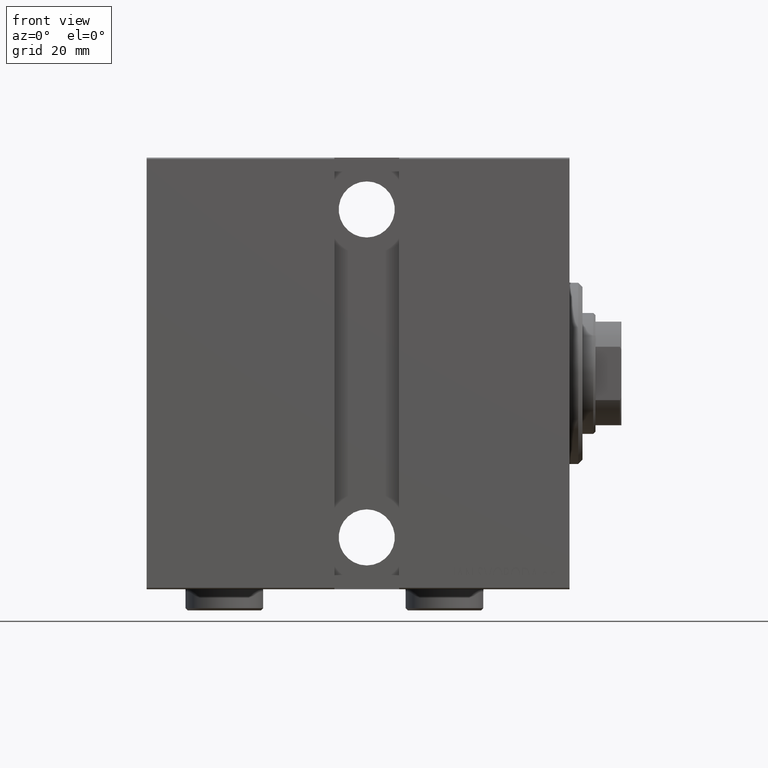
[diagram: clean part render]
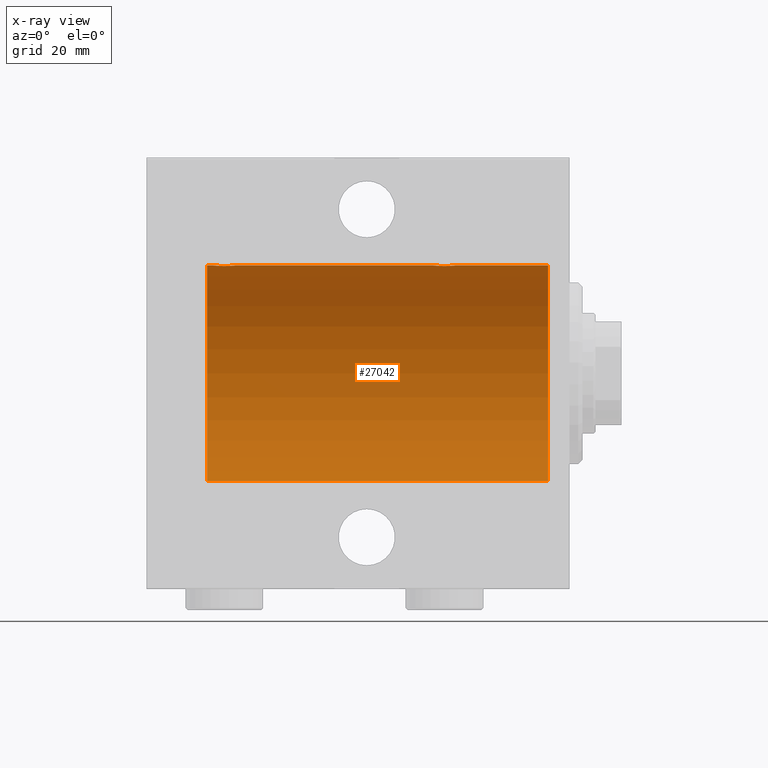
[diagram: x-ray — body ghosted, one internal face saturated and labeled with its STEP entity id]
A machine part, front view, then the same camera in x-ray: the body is ghosted and one INTERNAL B-rep face — a face not visible from any outside direction — is saturated and labeled: STEP entity #27042.
In plain terms, the highlighted cylindrical surface (partial cylindrical patch) has radius 25 mm, axis along (1, 0, -0).
Its self-contained STEP definition (entity closure, byte-faithful):
#28 = CARTESIAN_POINT ( 'NONE',  ( 78.88963203491135801, -2.245863995402899160, 24.89899750494197050 ) ) ;
#242 = VECTOR ( 'NONE', #32376, 1000.000000000000000 ) ;
#333 = CARTESIAN_POINT ( 'NONE',  ( 26.50000000000001066, -0.1631750940176202591, 25.00000000000001066 ) ) ;
#457 = CARTESIAN_POINT ( 'NONE',  ( 81.10723845838413126, -2.247417070759893942, 24.89885693081947338 ) ) ;
#550 = CARTESIAN_POINT ( 'NONE',  ( 26.57985090779071413, -0.6480119923854232855, 24.99212088949390775 ) ) ;
#634 = EDGE_LOOP ( 'NONE', ( #12469, #4731, #27933, #39482, #34597, #15109, #32681, #2078 ) ) ;
#767 = CARTESIAN_POINT ( 'NONE',  ( 28.67052319885731393, -2.483544361357271413, 24.87635491893501438 ) ) ;
#982 = CARTESIAN_POINT ( 'NONE',  ( 28.83293504821939734, -2.499872792855082793, 24.87469871246082675 ) ) ;
#1212 = DIRECTION ( 'NONE',  ( -1.000000000000000000, -0.000000000000000000, -0.000000000000000000 ) ) ;
#1458 = EDGE_CURVE ( 'NONE', #5057, #15138, #39580, .T. ) ;
#1757 = AXIS2_PLACEMENT_3D ( 'NONE', #14023, #17142, #4010 ) ;
#2078 = ORIENTED_EDGE ( 'NONE', *, *, #1458, .F. ) ;
#3589 = CARTESIAN_POINT ( 'NONE',  ( 79.35095609830904095, -2.419770561643906248, 24.88263927071751169 ) ) ;
#3800 = CARTESIAN_POINT ( 'NONE',  ( 79.67052319885733880, -2.483544361357268304, 24.87635491893502149 ) ) ;
#4010 = DIRECTION ( 'NONE',  ( 0.000000000000000000, 0.000000000000000000, 1.000000000000000000 ) ) ;
#4014 = CARTESIAN_POINT ( 'NONE',  ( 79.83293504821945419, -2.499872792855080572, 24.87469871246082675 ) ) ;
#4108 = CARTESIAN_POINT ( 'NONE',  ( 26.75239748980448695, -1.106703319666882956, 24.97594585958023217 ) ) ;
#4330 = CARTESIAN_POINT ( 'NONE',  ( 31.50000000000000000, -3.363311788663921560E-15, 25.00000000000000000 ) ) ;
#4731 = ORIENTED_EDGE ( 'NONE', *, *, #29504, .T. ) ;
#4983 = CARTESIAN_POINT ( 'NONE',  ( 31.50000000000000000, -3.363311788663921560E-15, 25.00000000000000000 ) ) ;
#5057 = VERTEX_POINT ( 'NONE', #39967 ) ;
#5164 = AXIS2_PLACEMENT_3D ( 'NONE', #38711, #8182, #31585 ) ;
#5191 = CARTESIAN_POINT ( 'NONE',  ( 84.00000000000000000, 0.000000000000000000, 25.00000000000000000 ) ) ;
#5701 = DIRECTION ( 'NONE',  ( -1.000000000000000000, -0.000000000000000000, -0.000000000000000000 ) ) ;
#5975 = VECTOR ( 'NONE', #5701, 1000.000000000000000 ) ;
#6477 = CARTESIAN_POINT ( 'NONE',  ( 81.25084023924057419, -2.170728182476715951, 24.90574631553725027 ) ) ;
#7275 = B_SPLINE_CURVE_WITH_KNOTS ( 'NONE', 3,
 ( #14779, #333, #11006, #550, #20803, #4108, #31498, #34411, #41756, #27703, #41317, #25020, #17676, #10785, #38629, #767, #982, #7659, #38407, #28362, #14338, #8100, #14551, #21680, #21237, #35288, #41532, #17245, #41103, #34847, #10575, #4330 ),
 .UNSPECIFIED., .F., .F.,
 ( 4, 2, 2, 2, 2, 2, 2, 2, 2, 2, 2, 2, 2, 2, 2, 4 ),
 ( 0.007821024441662273799, 0.008309723826317880202, 0.008798423210973484870, 0.009287122595629091273, 0.009775821980284697676, 0.01026452136494030234, 0.01075322074959590701, 0.01124192013425151342, 0.01173061951890711982, 0.01221931890356272449, 0.01270801828821833263, 0.01319671767287393729, 0.01368541705752954196, 0.01417411644218514837, 0.01466281582684075477, 0.01564021459615196757 ),
 .UNSPECIFIED. ) ;
#7342 = CARTESIAN_POINT ( 'NONE',  ( 77.82988709719073483, -1.252049606094332024, 24.96900299967626680 ) ) ;
#7659 = CARTESIAN_POINT ( 'NONE',  ( 29.16323589638542302, -2.500125740978195843, 24.87467329022545570 ) ) ;
#8100 = CARTESIAN_POINT ( 'NONE',  ( 30.10723845838410284, -2.247417070759899271, 24.89885693081946272 ) ) ;
#8182 = DIRECTION ( 'NONE',  ( -1.000000000000000000, -0.000000000000000000, -0.000000000000000000 ) ) ;
#9048 = CARTESIAN_POINT ( 'NONE',  ( 84.00000000000000000, 0.000000000000000000, 25.00000000000000000 ) ) ;
#9390 = VERTEX_POINT ( 'NONE', #4983 ) ;
#9495 = VERTEX_POINT ( 'NONE', #39739 ) ;
#9821 = CARTESIAN_POINT ( 'NONE',  ( 79.19211657594196652, -2.371528299825746089, 24.88734287464371420 ) ) ;
#10575 = CARTESIAN_POINT ( 'NONE',  ( 31.49999999999999289, -0.3305063766663730029, 25.00000000000000355 ) ) ;
#10685 = CARTESIAN_POINT ( 'NONE',  ( 77.57985090779074255, -0.6480119923854228414, 24.99212088949390775 ) ) ;
#10785 = CARTESIAN_POINT ( 'NONE',  ( 28.19211657594193809, -2.371528299825748753, 24.88734287464371064 ) ) ;
#11006 = CARTESIAN_POINT ( 'NONE',  ( 26.51582159942343608, -0.3254210271412226740, 24.99840249400844883 ) ) ;
#11043 = VERTEX_POINT ( 'NONE', #17567 ) ;
#12469 = ORIENTED_EDGE ( 'NONE', *, *, #20762, .F. ) ;
#13592 = CARTESIAN_POINT ( 'NONE',  ( 80.16323589638544433, -2.500125740978193178, 24.87467329022545925 ) ) ;
#14023 = CARTESIAN_POINT ( 'NONE',  ( 5.000000000000004441, 0.000000000000000000, 0.000000000000000000 ) ) ;
#14028 = CARTESIAN_POINT ( 'NONE',  ( 81.65121133559114242, -1.884161199660608688, 24.92916496727982434 ) ) ;
#14242 = CARTESIAN_POINT ( 'NONE',  ( 77.51582159942344674, -0.3254210271412231181, 24.99840249400844883 ) ) ;
#14338 = CARTESIAN_POINT ( 'NONE',  ( 29.80435660916302254, -2.372734907014176553, 24.88722742718433878 ) ) ;
#14551 = CARTESIAN_POINT ( 'NONE',  ( 30.25084023924055643, -2.170728182476721280, 24.90574631553725027 ) ) ;
#14779 = CARTESIAN_POINT ( 'NONE',  ( 26.50000000000000355, -1.940558383798427991E-23, 25.00000000000000000 ) ) ;
#15109 = ORIENTED_EDGE ( 'NONE', *, *, #43520, .F. ) ;
#15138 = VERTEX_POINT ( 'NONE', #35976 ) ;
#16474 = CARTESIAN_POINT ( 'NONE',  ( 84.00000000000000000, 3.061616997868382254E-15, -25.00000000000000000 ) ) ;
#17142 = DIRECTION ( 'NONE',  ( -1.000000000000000000, 0.000000000000000000, 0.000000000000000000 ) ) ;
#17148 = CARTESIAN_POINT ( 'NONE',  ( 82.24606379094068132, -1.109818057797408608, 24.97580694515542277 ) ) ;
#17245 = CARTESIAN_POINT ( 'NONE',  ( 31.16827641493957302, -1.255214705003182774, 24.96884293994578385 ) ) ;
#17298 = VECTOR ( 'NONE', #20052, 1000.000000000000000 ) ;
#17567 = CARTESIAN_POINT ( 'NONE',  ( 5.000000000000004441, 0.000000000000000000, 25.00000000000000000 ) ) ;
#17578 = CARTESIAN_POINT ( 'NONE',  ( 77.50000000000001421, -1.940163953345817485E-23, 25.00000000000000000 ) ) ;
#17676 = CARTESIAN_POINT ( 'NONE',  ( 27.88963203491136866, -2.245863995402901825, 24.89899750494197761 ) ) ;
#18217 = CARTESIAN_POINT ( 'NONE',  ( 84.00000000000000000, 0.000000000000000000, 0.000000000000000000 ) ) ;
#18854 = VECTOR ( 'NONE', #1212, 1000.000000000000000 ) ;
#20052 = DIRECTION ( 'NONE',  ( -1.000000000000000000, -0.000000000000000000, -0.000000000000000000 ) ) ;
#20064 = CARTESIAN_POINT ( 'NONE',  ( 81.98538033717099438, -1.528152964861306806, 24.95362559291379156 ) ) ;
#20498 = CARTESIAN_POINT ( 'NONE',  ( 26.50000000000000355, -1.940558383798427991E-23, 25.00000000000000000 ) ) ;
#20762 = EDGE_CURVE ( 'NONE', #40977, #5057, #36280, .T. ) ;
#20803 = CARTESIAN_POINT ( 'NONE',  ( 26.62784030591392437, -0.8058335233485456328, 24.98746277938383287 ) ) ;
#21237 = CARTESIAN_POINT ( 'NONE',  ( 30.65121133559111755, -1.884161199660619124, 24.92916496727982079 ) ) ;
#21680 = CARTESIAN_POINT ( 'NONE',  ( 30.52256774340189338, -1.989585286700246369, 24.92087098724766037 ) ) ;
#21699 = EDGE_CURVE ( 'NONE', #23838, #9390, #7275, .T. ) ;
#23396 = CARTESIAN_POINT ( 'NONE',  ( 78.47463817756926119, -1.987446652080266496, 24.92104239223421303 ) ) ;
#23838 = VERTEX_POINT ( 'NONE', #20498 ) ;
#24261 = CARTESIAN_POINT ( 'NONE',  ( 78.34616663850664509, -1.881857718844719640, 24.92933960374833902 ) ) ;
#24667 = FACE_OUTER_BOUND ( 'NONE', #634, .T. ) ;
#25020 = CARTESIAN_POINT ( 'NONE',  ( 27.74616804575497042, -2.169003991399871989, 24.90589728951139037 ) ) ;
#25101 = CYLINDRICAL_SURFACE ( 'NONE', #5164, 25.00000000000000000 ) ;
#27042 = ADVANCED_FACE ( 'NONE', ( #24667 ), #25101, .F. ) ;
#27171 = CARTESIAN_POINT ( 'NONE',  ( 80.32596570039464723, -2.484007091859760763, 24.87630842367763861 ) ) ;
#27392 = CARTESIAN_POINT ( 'NONE',  ( 81.52256774340189338, -1.989585286700241484, 24.92087098724765681 ) ) ;
#27605 = CARTESIAN_POINT ( 'NONE',  ( 82.50000000000005684, -0.3305063766663752789, 25.00000000000000711 ) ) ;
#27703 = CARTESIAN_POINT ( 'NONE',  ( 27.34616663850662377, -1.881857718844717642, 24.92933960374833902 ) ) ;
#27933 = ORIENTED_EDGE ( 'NONE', *, *, #42098, .T. ) ;
#28362 = CARTESIAN_POINT ( 'NONE',  ( 29.64560666148631896, -2.420689345803761938, 24.88254961038873958 ) ) ;
#29504 = EDGE_CURVE ( 'NONE', #40977, #41118, #43681, .T. ) ;
#30749 = CARTESIAN_POINT ( 'NONE',  ( 78.11587617213530166, -1.651251241585104834, 24.94567559498348785 ) ) ;
#30963 = CARTESIAN_POINT ( 'NONE',  ( 82.50000000000001421, 2.791216707898424283E-15, 25.00000000000000000 ) ) ;
#31180 = CARTESIAN_POINT ( 'NONE',  ( 77.62784030591393503, -0.8058335233485491855, 24.98746277938383287 ) ) ;
#31498 = CARTESIAN_POINT ( 'NONE',  ( 26.82988709719075260, -1.252049606094339351, 24.96900299967626680 ) ) ;
#31585 = DIRECTION ( 'NONE',  ( 0.000000000000000000, 0.000000000000000000, 1.000000000000000000 ) ) ;
#32376 = DIRECTION ( 'NONE',  ( -1.000000000000000000, -0.000000000000000000, -0.000000000000000000 ) ) ;
#32681 = ORIENTED_EDGE ( 'NONE', *, *, #35520, .T. ) ;
#33221 = B_SPLINE_CURVE_WITH_KNOTS ( 'NONE', 3,
 ( #17578, #43917, #14242, #10685, #31180, #40349, #7342, #40792, #30749, #24261, #23396, #34530, #28, #9821, #3589, #3800, #4014, #13592, #27171, #37004, #41222, #457, #6477, #27392, #14028, #34317, #20064, #33662, #17148, #33887, #27605, #30963 ),
 .UNSPECIFIED., .F., .F.,
 ( 4, 2, 2, 2, 2, 2, 2, 2, 2, 2, 2, 2, 2, 2, 2, 4 ),
 ( 0.007821024441662294616, 0.008309723826317902753, 0.008798423210973510891, 0.009287122595629119029, 0.009775821980284727167, 0.01026452136494033530, 0.01075322074959594344, 0.01124192013425155158, 0.01173061951890715972, 0.01221931890356276786, 0.01270801828821837599, 0.01319671767287398413, 0.01368541705752959400, 0.01417411644218520041, 0.01466281582684080854, 0.01564021459615200921 ),
 .UNSPECIFIED. ) ;
#33264 = CARTESIAN_POINT ( 'NONE',  ( 84.00000000000000000, 3.061616997868382254E-15, -25.00000000000000000 ) ) ;
#33662 = CARTESIAN_POINT ( 'NONE',  ( 82.16827641493958367, -1.255214705003175446, 24.96884293994578030 ) ) ;
#33887 = CARTESIAN_POINT ( 'NONE',  ( 82.43349355239749343, -0.6588655613945794132, 24.99312727339970053 ) ) ;
#34035 = CARTESIAN_POINT ( 'NONE',  ( 5.000000000000004441, 3.061616997868382254E-15, -25.00000000000000000 ) ) ;
#34064 = EDGE_CURVE ( 'NONE', #23838, #11043, #35710, .T. ) ;
#34317 = CARTESIAN_POINT ( 'NONE',  ( 81.88185954148649159, -1.653834020452929598, 24.94550385189585029 ) ) ;
#34411 = CARTESIAN_POINT ( 'NONE',  ( 27.01250184165601453, -1.525407911884367085, 24.95379469572361941 ) ) ;
#34530 = CARTESIAN_POINT ( 'NONE',  ( 78.74616804575498463, -2.169003991399871989, 24.90589728951138682 ) ) ;
#34597 = ORIENTED_EDGE ( 'NONE', *, *, #21699, .T. ) ;
#34847 = CARTESIAN_POINT ( 'NONE',  ( 31.43349355239748988, -0.6588655613945876288, 24.99312727339970408 ) ) ;
#35288 = CARTESIAN_POINT ( 'NONE',  ( 30.88185954148646317, -1.653834020452940479, 24.94550385189585739 ) ) ;
#35520 = EDGE_CURVE ( 'NONE', #9495, #15138, #33221, .T. ) ;
#35710 = LINE ( 'NONE', #5191, #242 ) ;
#35976 = CARTESIAN_POINT ( 'NONE',  ( 82.50000000000001421, 2.791216707898424283E-15, 25.00000000000000000 ) ) ;
#36280 = CIRCLE ( 'NONE', #39148, 25.00000000000000000 ) ;
#37004 = CARTESIAN_POINT ( 'NONE',  ( 80.64560666148635448, -2.420689345803754833, 24.88254961038874313 ) ) ;
#38407 = CARTESIAN_POINT ( 'NONE',  ( 29.32596570039459749, -2.484007091859766092, 24.87630842367763506 ) ) ;
#38504 = DIRECTION ( 'NONE',  ( -1.000000000000000000, 0.000000000000000000, 0.000000000000000000 ) ) ;
#38629 = CARTESIAN_POINT ( 'NONE',  ( 28.35095609830904095, -2.419770561643911133, 24.88263927071751169 ) ) ;
#38711 = CARTESIAN_POINT ( 'NONE',  ( 84.00000000000000000, 0.000000000000000000, 0.000000000000000000 ) ) ;
#39148 = AXIS2_PLACEMENT_3D ( 'NONE', #18217, #38504, #41857 ) ;
#39482 = ORIENTED_EDGE ( 'NONE', *, *, #34064, .F. ) ;
#39580 = LINE ( 'NONE', #9048, #5975 ) ;
#39739 = CARTESIAN_POINT ( 'NONE',  ( 77.50000000000001421, -1.940163953345817485E-23, 25.00000000000000000 ) ) ;
#39967 = CARTESIAN_POINT ( 'NONE',  ( 84.00000000000000000, 0.000000000000000000, 25.00000000000000000 ) ) ;
#40188 = CIRCLE ( 'NONE', #1757, 25.00000000000000000 ) ;
#40349 = CARTESIAN_POINT ( 'NONE',  ( 77.75239748980452248, -1.106703319666886065, 24.97594585958023572 ) ) ;
#40792 = CARTESIAN_POINT ( 'NONE',  ( 78.01250184165604651, -1.525407911884360201, 24.95379469572362297 ) ) ;
#40977 = VERTEX_POINT ( 'NONE', #33264 ) ;
#41103 = CARTESIAN_POINT ( 'NONE',  ( 31.24606379094068132, -1.109818057797417712, 24.97580694515542632 ) ) ;
#41118 = VERTEX_POINT ( 'NONE', #34035 ) ;
#41222 = CARTESIAN_POINT ( 'NONE',  ( 80.80435660916305096, -2.372734907014170780, 24.88722742718433523 ) ) ;
#41317 = CARTESIAN_POINT ( 'NONE',  ( 27.47463817756919369, -1.987446652080264275, 24.92104239223420592 ) ) ;
#41532 = CARTESIAN_POINT ( 'NONE',  ( 30.98538033717094464, -1.528152964861313023, 24.95362559291378801 ) ) ;
#41756 = CARTESIAN_POINT ( 'NONE',  ( 27.11587617213529100, -1.651251241585102836, 24.94567559498349141 ) ) ;
#41764 = CARTESIAN_POINT ( 'NONE',  ( 84.00000000000000000, 0.000000000000000000, 25.00000000000000000 ) ) ;
#41857 = DIRECTION ( 'NONE',  ( 0.000000000000000000, 0.000000000000000000, 1.000000000000000000 ) ) ;
#42098 = EDGE_CURVE ( 'NONE', #41118, #11043, #40188, .T. ) ;
#43520 = EDGE_CURVE ( 'NONE', #9495, #9390, #44074, .T. ) ;
#43681 = LINE ( 'NONE', #16474, #17298 ) ;
#43917 = CARTESIAN_POINT ( 'NONE',  ( 77.50000000000004263, -0.1631750940176218967, 25.00000000000000355 ) ) ;
#44074 = LINE ( 'NONE', #41764, #18854 ) ;